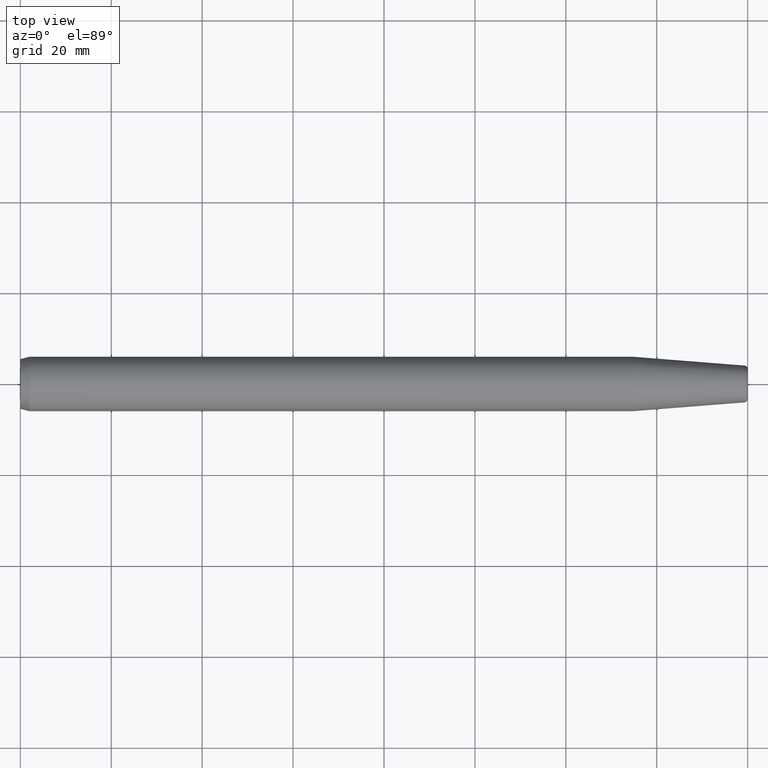
[diagram: clean part render]
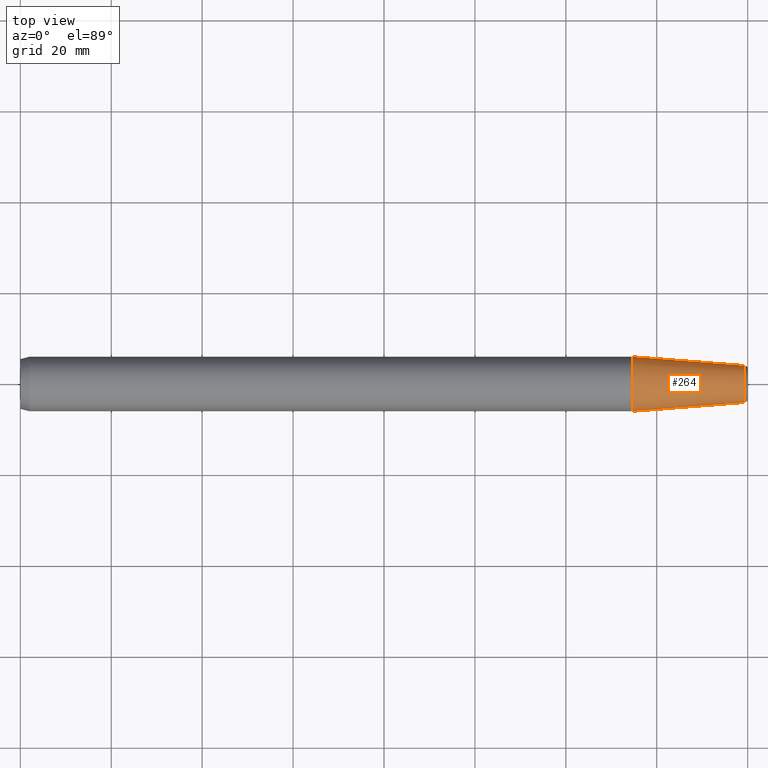
[diagram: same view with one face highlighted and labeled with its STEP entity id]
A machine part, top view. The second image highlights one B-rep face of the part: STEP entity #264.
In plain terms, the highlighted conical surface has half-angle 4.5 deg.
Its self-contained STEP definition (entity closure, byte-faithful):
#24=CARTESIAN_POINT('',(1.345875905277E2,0.E0,0.E0));
#25=DIRECTION('',(1.E0,0.E0,0.E0));
#26=DIRECTION('',(0.E0,1.E0,0.E0));
#27=AXIS2_PLACEMENT_3D('',#24,#25,#26);
#52=DIRECTION('',(-9.969173337331E-1,7.845909572785E-2,2.048405070112E-12));
#53=VECTOR('',#52,2.475147729305E1);
#54=CARTESIAN_POINT('',(1.592627672766E2,4.058021473659E0,-5.070031679175E-11));
#55=LINE('',#54,#53);
#56=DIRECTION('',(-9.969173337331E-1,-7.845909572785E-2,-2.048400050570E-12));
#57=VECTOR('',#56,2.475147729305E1);
#58=CARTESIAN_POINT('',(1.592627672766E2,-4.058021473659E0,5.070019255067E-11));
#59=LINE('',#58,#57);
#70=CARTESIAN_POINT('',(1.592627672766E2,0.E0,0.E0));
#71=DIRECTION('',(-1.E0,0.E0,0.E0));
#72=DIRECTION('',(0.E0,-1.E0,0.E0));
#73=AXIS2_PLACEMENT_3D('',#70,#71,#72);
#113=CARTESIAN_POINT('',(1.345875905277E2,6.E0,0.E0));
#114=CARTESIAN_POINT('',(1.345875905277E2,-6.E0,0.E0));
#115=VERTEX_POINT('',#113);
#116=VERTEX_POINT('',#114);
#133=CARTESIAN_POINT('',(1.592627672766E2,4.058021473660E0,0.E0));
#134=CARTESIAN_POINT('',(1.592627672766E2,-4.058021473660E0,0.E0));
#135=VERTEX_POINT('',#133);
#136=VERTEX_POINT('',#134);
#253=CARTESIAN_POINT('',(1.469251789021E2,0.E0,0.E0));
#254=DIRECTION('',(-1.E0,0.E0,0.E0));
#255=DIRECTION('',(0.E0,1.E0,0.E0));
#256=AXIS2_PLACEMENT_3D('',#253,#254,#255);
#257=CONICAL_SURFACE('',#256,5.029010736830E0,4.5E0);
#258=ORIENTED_EDGE('',*,*,#244,.F.);
#259=ORIENTED_EDGE('',*,*,#219,.T.);
#260=ORIENTED_EDGE('',*,*,#189,.F.);
#261=ORIENTED_EDGE('',*,*,#216,.F.);
#262=EDGE_LOOP('',(#258,#259,#260,#261));
#263=FACE_OUTER_BOUND('',#262,.F.);
#264=ADVANCED_FACE('',(#263),#257,.T.);
#28=CIRCLE('',#27,6.E0);
#74=CIRCLE('',#73,4.058021473660E0);
#189=EDGE_CURVE('',#115,#116,#28,.T.);
#216=EDGE_CURVE('',#135,#115,#55,.T.);
#219=EDGE_CURVE('',#136,#116,#59,.T.);
#244=EDGE_CURVE('',#136,#135,#74,.T.);